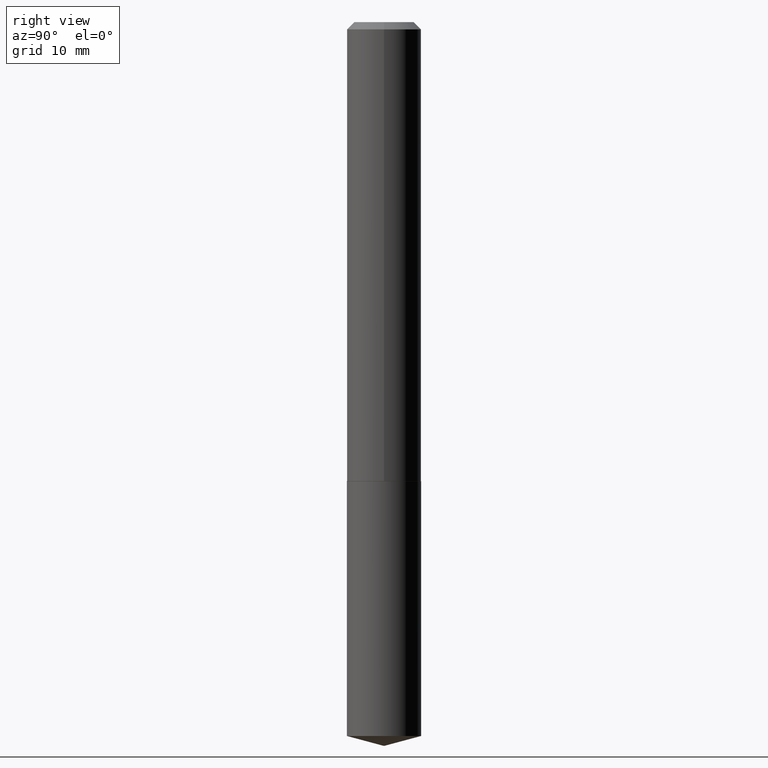
[diagram: clean part render]
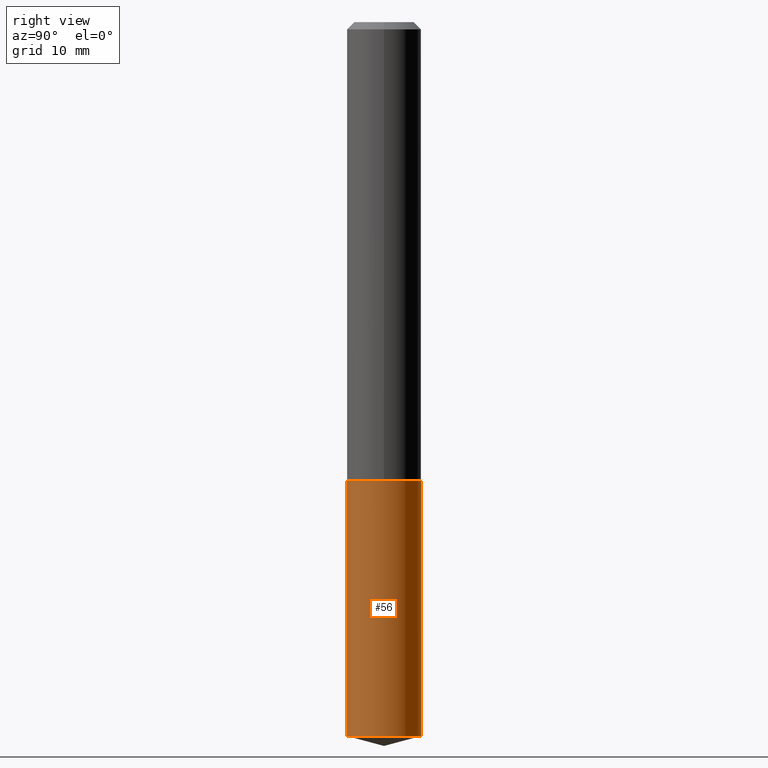
[diagram: same view with one face highlighted and labeled with its STEP entity id]
A machine part, right view. The second image highlights one B-rep face of the part: STEP entity #56.
In plain terms, the highlighted cylindrical surface (partial cylindrical patch) has radius 4.05 mm, axis along (-0, 0, 1).
Its self-contained STEP definition (entity closure, byte-faithful):
#1 = CYLINDRICAL_SURFACE ( 'NONE', #389, 0.1594500000000000361 ) ;
#6 = DIRECTION ( 'NONE',  ( -2.445414738655623976E-29, 3.491558766622740629E-15, 1.000000000000000000 ) ) ;
#12 = EDGE_CURVE ( 'NONE', #297, #117, #171, .T. ) ;
#21 = EDGE_CURVE ( 'NONE', #232, #148, #194, .T. ) ;
#33 = DIRECTION ( 'NONE',  ( -6.982962677686265133E-15, -1.000000000000000000, 3.426588891394496771E-15 ) ) ;
#37 = AXIS2_PLACEMENT_3D ( 'NONE', #154, #271, #95 ) ;
#56 = ADVANCED_FACE ( 'NONE', ( #64 ), #1, .T. ) ;
#64 = FACE_OUTER_BOUND ( 'NONE', #84, .T. ) ;
#67 = EDGE_CURVE ( 'NONE', #148, #117, #215, .T. ) ;
#84 = EDGE_LOOP ( 'NONE', ( #112, #355, #138, #85 ) ) ;
#85 = ORIENTED_EDGE ( 'NONE', *, *, #218, .F. ) ;
#95 = DIRECTION ( 'NONE',  ( -6.982962677686265133E-15, -1.000000000000000000, 3.426588891394496771E-15 ) ) ;
#103 = CARTESIAN_POINT ( 'NONE',  ( 1.132960392169554156E-15, 0.1594499999999892392, -3.067475501266858195 ) ) ;
#112 = ORIENTED_EDGE ( 'NONE', *, *, #21, .T. ) ;
#117 = VERTEX_POINT ( 'NONE', #336 ) ;
#125 = DIRECTION ( 'NONE',  ( -2.445414738655623695E-29, 3.491558766622740629E-15, 1.000000000000000000 ) ) ;
#138 = ORIENTED_EDGE ( 'NONE', *, *, #12, .F. ) ;
#148 = VERTEX_POINT ( 'NONE', #103 ) ;
#154 = CARTESIAN_POINT ( 'NONE',  ( 7.501356444058232393E-29, -1.071011825929630935E-14, -3.067475501266857751 ) ) ;
#156 = CARTESIAN_POINT ( 'NONE',  ( 4.823442673319563780E-29, -6.886597792734220224E-15, -1.972399999999999931 ) ) ;
#171 = CIRCLE ( 'NONE', #225, 0.1594500000000000361 ) ;
#182 = CARTESIAN_POINT ( 'NONE',  ( 4.823442673319563780E-29, -6.886597792734220224E-15, -1.972399999999999931 ) ) ;
#194 = CIRCLE ( 'NONE', #37, 0.1594500000000000361 ) ;
#199 = LINE ( 'NONE', #354, #284 ) ;
#210 = DIRECTION ( 'NONE',  ( -6.982962677686265133E-15, -1.000000000000000000, 3.426588891394496771E-15 ) ) ;
#215 = LINE ( 'NONE', #370, #220 ) ;
#218 = EDGE_CURVE ( 'NONE', #232, #297, #199, .T. ) ;
#220 = VECTOR ( 'NONE', #6, 39.37007874015748143 ) ;
#225 = AXIS2_PLACEMENT_3D ( 'NONE', #156, #274, #33 ) ;
#232 = VERTEX_POINT ( 'NONE', #289 ) ;
#271 = DIRECTION ( 'NONE',  ( -2.445414738655623695E-29, 3.491558766622740629E-15, 1.000000000000000000 ) ) ;
#274 = DIRECTION ( 'NONE',  ( -2.445414738655623695E-29, 3.491558766622740629E-15, 1.000000000000000000 ) ) ;
#284 = VECTOR ( 'NONE', #322, 39.37007874015748143 ) ;
#289 = CARTESIAN_POINT ( 'NONE',  ( -1.113433398956999872E-15, -0.1594500000000106665, -3.067475501266857307 ) ) ;
#297 = VERTEX_POINT ( 'NONE', #325 ) ;
#322 = DIRECTION ( 'NONE',  ( -2.445414738655623976E-29, 3.491558766622740629E-15, 1.000000000000000000 ) ) ;
#325 = CARTESIAN_POINT ( 'NONE',  ( -1.113433398957026890E-15, -0.1594500000000069195, -1.972399999999999487 ) ) ;
#336 = CARTESIAN_POINT ( 'NONE',  ( 1.132960392169554945E-15, 0.1594499999999931250, -1.972400000000000597 ) ) ;
#354 = CARTESIAN_POINT ( 'NONE',  ( -1.113433398957026890E-15, -0.1594500000000069195, -1.972399999999999487 ) ) ;
#355 = ORIENTED_EDGE ( 'NONE', *, *, #67, .T. ) ;
#370 = CARTESIAN_POINT ( 'NONE',  ( 1.132960392169527927E-15, 0.1594499999999931250, -1.972400000000000597 ) ) ;
#389 = AXIS2_PLACEMENT_3D ( 'NONE', #182, #125, #210 ) ;